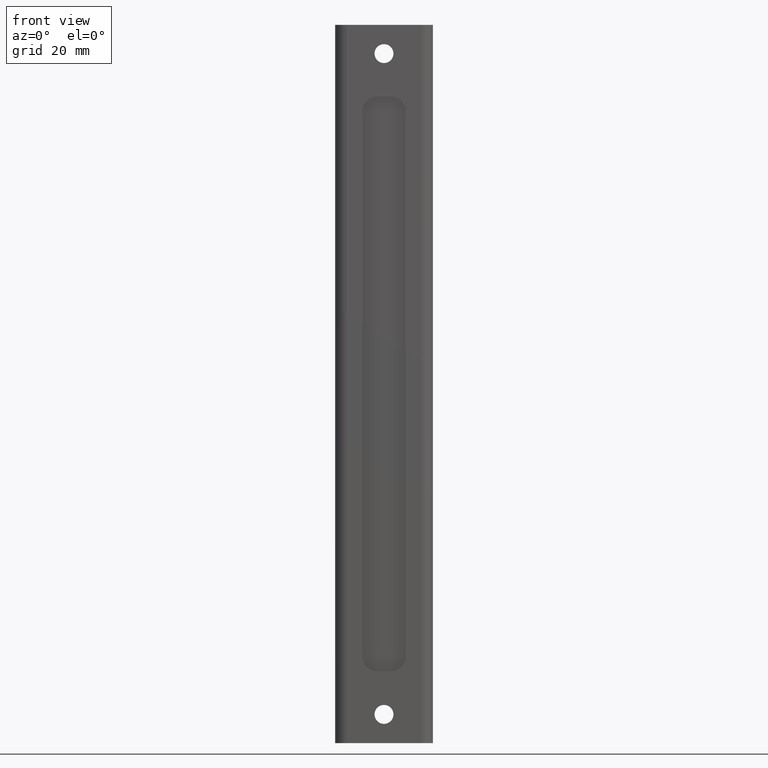
[diagram: clean part render]
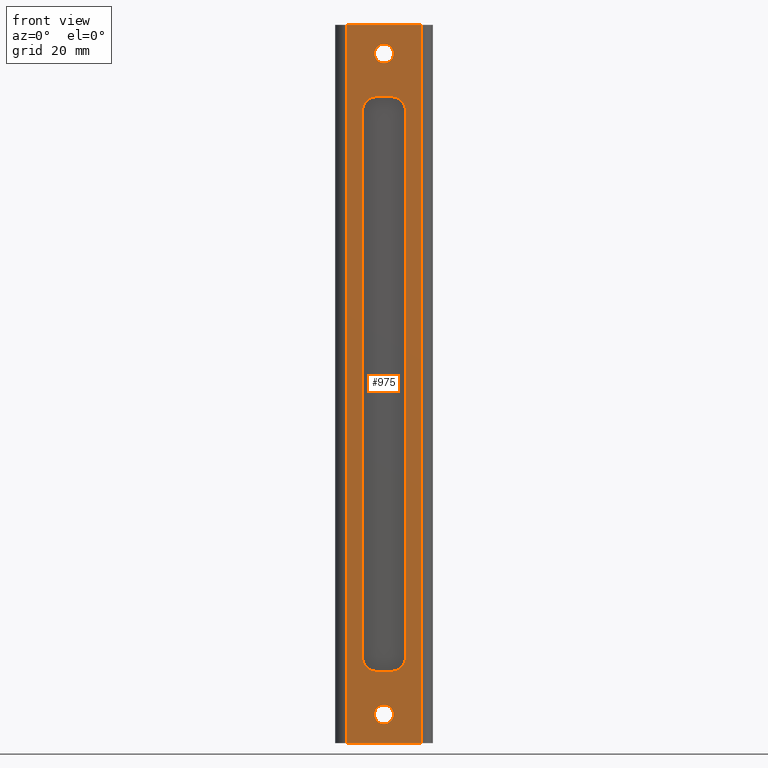
[diagram: same view with one face highlighted and labeled with its STEP entity id]
A machine part, front view. The second image highlights one B-rep face of the part: STEP entity #975.
In plain terms, the highlighted planar face has unit normal (0, 1, 0).
Its self-contained STEP definition (entity closure, byte-faithful):
#53=CIRCLE('',#1051,3.29999999999997);
#54=CIRCLE('',#1052,5.);
#55=CIRCLE('',#1053,5.);
#56=CIRCLE('',#1054,5.);
#57=CIRCLE('',#1055,5.);
#58=CIRCLE('',#1056,3.29999999999997);
#117=ORIENTED_EDGE('',*,*,#405,.T.);
#118=ORIENTED_EDGE('',*,*,#406,.F.);
#119=ORIENTED_EDGE('',*,*,#407,.T.);
#120=ORIENTED_EDGE('',*,*,#408,.F.);
#121=ORIENTED_EDGE('',*,*,#409,.T.);
#122=ORIENTED_EDGE('',*,*,#410,.F.);
#123=ORIENTED_EDGE('',*,*,#411,.T.);
#124=ORIENTED_EDGE('',*,*,#412,.F.);
#125=ORIENTED_EDGE('',*,*,#413,.T.);
#126=ORIENTED_EDGE('',*,*,#414,.F.);
#127=ORIENTED_EDGE('',*,*,#415,.F.);
#128=ORIENTED_EDGE('',*,*,#416,.F.);
#129=ORIENTED_EDGE('',*,*,#417,.F.);
#130=ORIENTED_EDGE('',*,*,#418,.T.);
#405=EDGE_CURVE('',#549,#549,#53,.T.);
#406=EDGE_CURVE('',#550,#551,#640,.T.);
#407=EDGE_CURVE('',#550,#552,#54,.T.);
#408=EDGE_CURVE('',#553,#552,#641,.T.);
#409=EDGE_CURVE('',#553,#554,#55,.T.);
#410=EDGE_CURVE('',#555,#554,#642,.T.);
#411=EDGE_CURVE('',#555,#556,#56,.T.);
#412=EDGE_CURVE('',#557,#556,#643,.T.);
#413=EDGE_CURVE('',#557,#551,#57,.T.);
#414=EDGE_CURVE('',#558,#559,#644,.T.);
#415=EDGE_CURVE('',#560,#558,#645,.T.);
#416=EDGE_CURVE('',#561,#560,#646,.T.);
#417=EDGE_CURVE('',#559,#561,#647,.T.);
#418=EDGE_CURVE('',#562,#562,#58,.T.);
#549=VERTEX_POINT('',#1503);
#550=VERTEX_POINT('',#1505);
#551=VERTEX_POINT('',#1506);
#552=VERTEX_POINT('',#1508);
#553=VERTEX_POINT('',#1510);
#554=VERTEX_POINT('',#1512);
#555=VERTEX_POINT('',#1514);
#556=VERTEX_POINT('',#1516);
#557=VERTEX_POINT('',#1518);
#558=VERTEX_POINT('',#1521);
#559=VERTEX_POINT('',#1522);
#560=VERTEX_POINT('',#1524);
#561=VERTEX_POINT('',#1526);
#562=VERTEX_POINT('',#1529);
#640=LINE('',#1504,#728);
#641=LINE('',#1509,#729);
#642=LINE('',#1513,#730);
#643=LINE('',#1517,#731);
#644=LINE('',#1520,#732);
#645=LINE('',#1523,#733);
#646=LINE('',#1525,#734);
#647=LINE('',#1527,#735);
#728=VECTOR('',#1184,1000.);
#729=VECTOR('',#1187,1000.);
#730=VECTOR('',#1190,1000.);
#731=VECTOR('',#1193,1000.);
#732=VECTOR('',#1196,1000.);
#733=VECTOR('',#1197,1000.);
#734=VECTOR('',#1198,1000.);
#735=VECTOR('',#1199,1000.);
#811=EDGE_LOOP('',(#117));
#812=EDGE_LOOP('',(#118,#119,#120,#121,#122,#123,#124,#125));
#813=EDGE_LOOP('',(#126,#127,#128,#129));
#814=EDGE_LOOP('',(#130));
#879=FACE_BOUND('',#811,.T.);
#880=FACE_BOUND('',#812,.T.);
#881=FACE_BOUND('',#813,.T.);
#882=FACE_BOUND('',#814,.T.);
#946=PLANE('',#1050);
#975=ADVANCED_FACE('',(#879,#880,#881,#882),#946,.F.);
#1050=AXIS2_PLACEMENT_3D('',#1501,#1180,#1181);
#1051=AXIS2_PLACEMENT_3D('',#1502,#1182,#1183);
#1052=AXIS2_PLACEMENT_3D('',#1507,#1185,#1186);
#1053=AXIS2_PLACEMENT_3D('',#1511,#1188,#1189);
#1054=AXIS2_PLACEMENT_3D('',#1515,#1191,#1192);
#1055=AXIS2_PLACEMENT_3D('',#1519,#1194,#1195);
#1056=AXIS2_PLACEMENT_3D('',#1528,#1200,#1201);
#1180=DIRECTION('',(4.06163832661068E-16,1.,1.66533453693773E-16));
#1181=DIRECTION('',(-1.,4.06163832661068E-16,-8.93686180177302E-17));
#1182=DIRECTION('',(4.06163832661068E-16,1.,1.66533453693773E-16));
#1183=DIRECTION('',(-1.,4.06163832661068E-16,0.));
#1184=DIRECTION('',(-8.93686180177302E-17,-1.66533453693773E-16,1.));
#1185=DIRECTION('',(4.06163832661068E-16,1.,1.66533453693773E-16));
#1186=DIRECTION('',(-1.,4.06163832661068E-16,-8.93686180177302E-17));
#1187=DIRECTION('',(1.,-4.06163832661068E-16,8.93686180177302E-17));
#1188=DIRECTION('',(4.06163832661068E-16,1.,1.66533453693773E-16));
#1189=DIRECTION('',(-1.,4.06163832661068E-16,-8.93686180177302E-17));
#1190=DIRECTION('',(8.93686180177302E-17,1.66533453693773E-16,-1.));
#1191=DIRECTION('',(4.06163832661068E-16,1.,1.66533453693773E-16));
#1192=DIRECTION('',(-1.,4.06163832661068E-16,-8.93686180177302E-17));
#1193=DIRECTION('',(-1.,4.06163832661068E-16,-8.93686180177302E-17));
#1194=DIRECTION('',(4.06163832661068E-16,1.,1.66533453693773E-16));
#1195=DIRECTION('',(-1.,4.06163832661068E-16,-8.93686180177302E-17));
#1196=DIRECTION('',(-1.,4.06163832661068E-16,-8.93686180177302E-17));
#1197=DIRECTION('',(-3.43749899352818E-17,1.66533453693773E-16,-1.));
#1198=DIRECTION('',(1.,-4.06163832661068E-16,8.93686180177302E-17));
#1199=DIRECTION('',(3.32185076179637E-17,-1.66533453693773E-16,1.));
#1200=DIRECTION('',(4.06163832661068E-16,1.,1.66533453693773E-16));
#1201=DIRECTION('',(-1.,4.06163832661068E-16,0.));
#1501=CARTESIAN_POINT('',(-1.03104538151908E-14,-34.0130367319026,-3.71924713249427E-15));
#1502=CARTESIAN_POINT('',(-1.74730665500947E-14,-34.0130367319026,115.));
#1503=CARTESIAN_POINT('',(-3.29999999999999,-34.0130367319026,115.));
#1504=CARTESIAN_POINT('',(7.50000000000001,-34.0130367319025,-350.));
#1505=CARTESIAN_POINT('',(7.50000000000007,-34.0130367319026,-95.0000000000001));
#1506=CARTESIAN_POINT('',(7.49999999999995,-34.0130367319026,95.0000000000001));
#1507=CARTESIAN_POINT('',(2.50000000000007,-34.0130367319025,-95.0000000000001));
#1508=CARTESIAN_POINT('',(2.50000000000007,-34.0130367319025,-100.));
#1509=CARTESIAN_POINT('',(-5.99999999999993,-34.0130367319025,-100.));
#1510=CARTESIAN_POINT('',(-2.49999999999997,-34.0130367319025,-100.));
#1511=CARTESIAN_POINT('',(-2.49999999999997,-34.0130367319025,-95.0000000000001));
#1512=CARTESIAN_POINT('',(-7.49999999999996,-34.0130367319025,-95.0000000000001));
#1513=CARTESIAN_POINT('',(-7.50000000000002,-34.0130367319025,-350.));
#1514=CARTESIAN_POINT('',(-7.50000000000008,-34.0130367319026,95.0000000000001));
#1515=CARTESIAN_POINT('',(-2.50000000000008,-34.0130367319026,95.0000000000001));
#1516=CARTESIAN_POINT('',(-2.50000000000008,-34.0130367319026,100.));
#1517=CARTESIAN_POINT('',(-6.00000000000005,-34.0130367319026,100.));
#1518=CARTESIAN_POINT('',(2.49999999999995,-34.0130367319026,100.));
#1519=CARTESIAN_POINT('',(2.49999999999995,-34.0130367319026,95.0000000000001));
#1520=CARTESIAN_POINT('',(-7.49999999999997,-34.0130367319025,-125.));
#1521=CARTESIAN_POINT('',(13.0000000000001,-34.0130367319025,-125.));
#1522=CARTESIAN_POINT('',(-13.,-34.0130367319025,-125.));
#1523=CARTESIAN_POINT('',(13.0000000000001,-34.0130367319026,375.));
#1524=CARTESIAN_POINT('',(13.,-34.0130367319026,125.));
#1525=CARTESIAN_POINT('',(-7.49999999999999,-34.0130367319026,125.));
#1526=CARTESIAN_POINT('',(-13.,-34.0130367319026,125.));
#1527=CARTESIAN_POINT('',(-13.,-34.0130367319026,-3.28740653346074E-15));
#1528=CARTESIAN_POINT('',(1.34900564498441E-14,-34.0130367319025,-115.));
#1529=CARTESIAN_POINT('',(-3.29999999999996,-34.0130367319025,-115.));